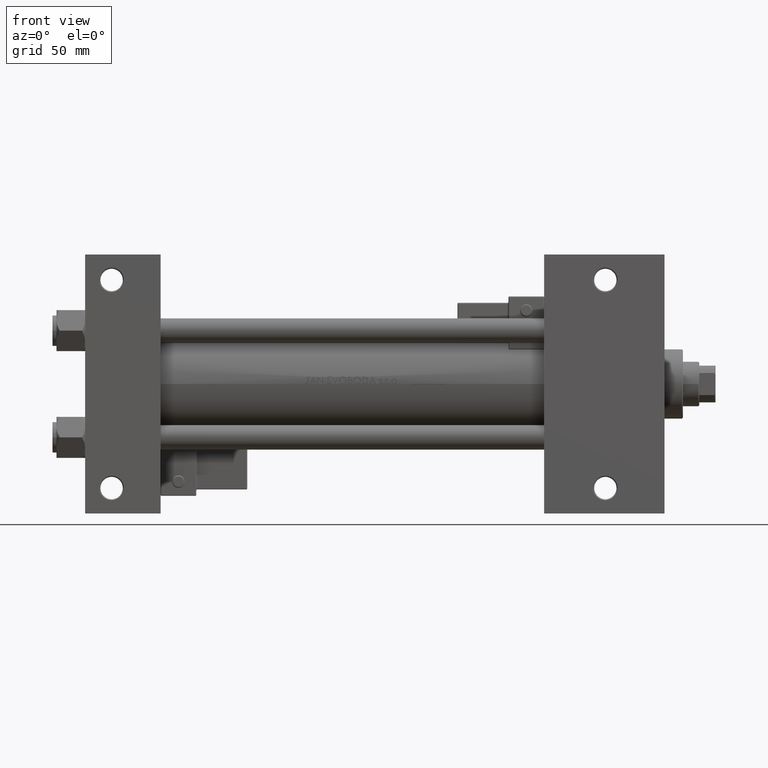
[diagram: clean part render]
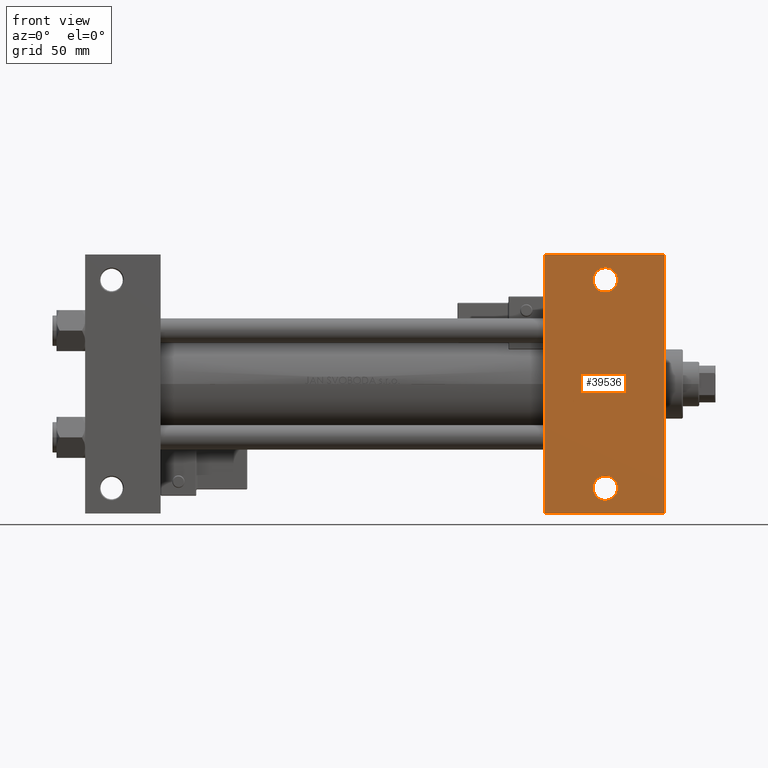
[diagram: same view with one face highlighted and labeled with its STEP entity id]
A machine part, front view. The second image highlights one B-rep face of the part: STEP entity #39536.
In plain terms, the highlighted planar face has unit normal (0, -1, 0).
Its self-contained STEP definition (entity closure, byte-faithful):
#837 = VECTOR ( 'NONE', #3179, 1000.000000000000000 ) ;
#1227 = DIRECTION ( 'NONE',  ( -0.000000000000000000, -0.000000000000000000, 1.000000000000000000 ) ) ;
#2985 = DIRECTION ( 'NONE',  ( 1.000000000000000000, -4.704334850106595794E-16, 0.000000000000000000 ) ) ;
#3179 = DIRECTION ( 'NONE',  ( 0.000000000000000000, -1.000000000000000000, 0.000000000000000000 ) ) ;
#3860 = AXIS2_PLACEMENT_3D ( 'NONE', #32577, #1227, #35967 ) ;
#3891 = VECTOR ( 'NONE', #5155, 1000.000000000000000 ) ;
#4117 = VECTOR ( 'NONE', #2985, 1000.000000000000000 ) ;
#4471 = EDGE_LOOP ( 'NONE', ( #21843, #28132 ) ) ;
#5155 = DIRECTION ( 'NONE',  ( -1.000000000000000000, -0.000000000000000000, -0.000000000000000000 ) ) ;
#6289 = AXIS2_PLACEMENT_3D ( 'NONE', #50028, #45907, #42025 ) ;
#6869 = FACE_BOUND ( 'NONE', #4471, .T. ) ;
#7227 = EDGE_CURVE ( 'NONE', #22012, #8017, #39373, .T. ) ;
#8017 = VERTEX_POINT ( 'NONE', #27100 ) ;
#9133 = CARTESIAN_POINT ( 'NONE',  ( 284.0000000000000568, 63.49999999999997158, -37.50000000000000000 ) ) ;
#9283 = DIRECTION ( 'NONE',  ( -0.000000000000000000, -0.000000000000000000, 1.000000000000000000 ) ) ;
#9490 = EDGE_CURVE ( 'NONE', #8017, #22012, #25388, .T. ) ;
#10033 = DIRECTION ( 'NONE',  ( -1.000000000000000000, 0.000000000000000000, 0.000000000000000000 ) ) ;
#10489 = ORIENTED_EDGE ( 'NONE', *, *, #19749, .T. ) ;
#10598 = AXIS2_PLACEMENT_3D ( 'NONE', #15161, #47002, #11253 ) ;
#11181 = EDGE_LOOP ( 'NONE', ( #13111, #24813 ) ) ;
#11253 = DIRECTION ( 'NONE',  ( -1.000000000000000000, 0.000000000000000000, -0.000000000000000000 ) ) ;
#12276 = CARTESIAN_POINT ( 'NONE',  ( 225.0000000000000000, 37.50000000000000000, -37.50000000000000000 ) ) ;
#12528 = ORIENTED_EDGE ( 'NONE', *, *, #24741, .F. ) ;
#12886 = EDGE_LOOP ( 'NONE', ( #12528, #28257, #10489, #35408 ) ) ;
#12901 = DIRECTION ( 'NONE',  ( -1.000000000000000000, 0.000000000000000000, 0.000000000000000000 ) ) ;
#13111 = ORIENTED_EDGE ( 'NONE', *, *, #14143, .T. ) ;
#14143 = EDGE_CURVE ( 'NONE', #48313, #31124, #49548, .T. ) ;
#15161 = CARTESIAN_POINT ( 'NONE',  ( 284.0000000000000568, 37.50000000000000000, -37.50000000000000000 ) ) ;
#15409 = VERTEX_POINT ( 'NONE', #29945 ) ;
#15925 = VECTOR ( 'NONE', #32228, 1000.000000000000000 ) ;
#19749 = EDGE_CURVE ( 'NONE', #40981, #24453, #50838, .T. ) ;
#19920 = CARTESIAN_POINT ( 'NONE',  ( 249.0005000000000166, 51.00000000000000000, -37.50000000000000000 ) ) ;
#21683 = CARTESIAN_POINT ( 'NONE',  ( 255.0000000000000000, 51.00000000000000000, -37.50000000000000000 ) ) ;
#21843 = ORIENTED_EDGE ( 'NONE', *, *, #9490, .T. ) ;
#22012 = VERTEX_POINT ( 'NONE', #25117 ) ;
#22614 = AXIS2_PLACEMENT_3D ( 'NONE', #21683, #36764, #12901 ) ;
#24453 = VERTEX_POINT ( 'NONE', #30740 ) ;
#24741 = EDGE_CURVE ( 'NONE', #27035, #15409, #44377, .T. ) ;
#24813 = ORIENTED_EDGE ( 'NONE', *, *, #30823, .T. ) ;
#25117 = CARTESIAN_POINT ( 'NONE',  ( 260.9995000000000118, -51.00000000000000000, -37.50000000000000000 ) ) ;
#25388 = CIRCLE ( 'NONE', #3860, 5.999499999999990507 ) ;
#27035 = VERTEX_POINT ( 'NONE', #27610 ) ;
#27100 = CARTESIAN_POINT ( 'NONE',  ( 249.0005000000000166, -51.00000000000000000, -37.50000000000000000 ) ) ;
#27610 = CARTESIAN_POINT ( 'NONE',  ( 225.0000000000000284, 63.50000000000000000, -37.50000000000000000 ) ) ;
#28132 = ORIENTED_EDGE ( 'NONE', *, *, #7227, .T. ) ;
#28257 = ORIENTED_EDGE ( 'NONE', *, *, #39499, .T. ) ;
#28732 = CARTESIAN_POINT ( 'NONE',  ( 225.0000000000000000, -63.50000000000002842, -37.50000000000000000 ) ) ;
#29228 = CIRCLE ( 'NONE', #22614, 5.999499999999990507 ) ;
#29945 = CARTESIAN_POINT ( 'NONE',  ( 225.0000000000000000, -63.50000000000002842, -37.50000000000000000 ) ) ;
#30740 = CARTESIAN_POINT ( 'NONE',  ( 284.0000000000000568, -63.50000000000002842, -37.50000000000000000 ) ) ;
#30823 = EDGE_CURVE ( 'NONE', #31124, #48313, #29228, .T. ) ;
#31124 = VERTEX_POINT ( 'NONE', #31250 ) ;
#31219 = FACE_BOUND ( 'NONE', #11181, .T. ) ;
#31250 = CARTESIAN_POINT ( 'NONE',  ( 260.9995000000000118, 51.00000000000000000, -37.50000000000000000 ) ) ;
#31381 = AXIS2_PLACEMENT_3D ( 'NONE', #38027, #9283, #10033 ) ;
#32228 = DIRECTION ( 'NONE',  ( 0.000000000000000000, -1.000000000000000000, 0.000000000000000000 ) ) ;
#32577 = CARTESIAN_POINT ( 'NONE',  ( 255.0000000000000000, -51.00000000000000000, -37.50000000000000000 ) ) ;
#33455 = EDGE_CURVE ( 'NONE', #24453, #15409, #48649, .T. ) ;
#35408 = ORIENTED_EDGE ( 'NONE', *, *, #33455, .T. ) ;
#35967 = DIRECTION ( 'NONE',  ( -1.000000000000000000, 0.000000000000000000, 0.000000000000000000 ) ) ;
#36764 = DIRECTION ( 'NONE',  ( -0.000000000000000000, -0.000000000000000000, 1.000000000000000000 ) ) ;
#38027 = CARTESIAN_POINT ( 'NONE',  ( 255.0000000000000000, 51.00000000000000000, -37.50000000000000000 ) ) ;
#38221 = LINE ( 'NONE', #42618, #4117 ) ;
#39373 = CIRCLE ( 'NONE', #6289, 5.999499999999990507 ) ;
#39499 = EDGE_CURVE ( 'NONE', #27035, #40981, #38221, .T. ) ;
#39536 = ADVANCED_FACE ( 'NONE', ( #31219, #6869, #41868 ), #50367, .T. ) ;
#40981 = VERTEX_POINT ( 'NONE', #9133 ) ;
#41868 = FACE_OUTER_BOUND ( 'NONE', #12886, .T. ) ;
#42025 = DIRECTION ( 'NONE',  ( -1.000000000000000000, 0.000000000000000000, 0.000000000000000000 ) ) ;
#42560 = CARTESIAN_POINT ( 'NONE',  ( 284.0000000000000568, 37.50000000000000000, -37.50000000000000000 ) ) ;
#42618 = CARTESIAN_POINT ( 'NONE',  ( 225.0000000000000284, 63.50000000000000000, -37.50000000000000000 ) ) ;
#44377 = LINE ( 'NONE', #12276, #15925 ) ;
#45907 = DIRECTION ( 'NONE',  ( -0.000000000000000000, -0.000000000000000000, 1.000000000000000000 ) ) ;
#47002 = DIRECTION ( 'NONE',  ( 0.000000000000000000, 0.000000000000000000, -1.000000000000000000 ) ) ;
#48313 = VERTEX_POINT ( 'NONE', #19920 ) ;
#48649 = LINE ( 'NONE', #28732, #3891 ) ;
#49548 = CIRCLE ( 'NONE', #31381, 5.999499999999990507 ) ;
#50028 = CARTESIAN_POINT ( 'NONE',  ( 255.0000000000000000, -51.00000000000000000, -37.50000000000000000 ) ) ;
#50367 = PLANE ( 'NONE',  #10598 ) ;
#50838 = LINE ( 'NONE', #42560, #837 ) ;